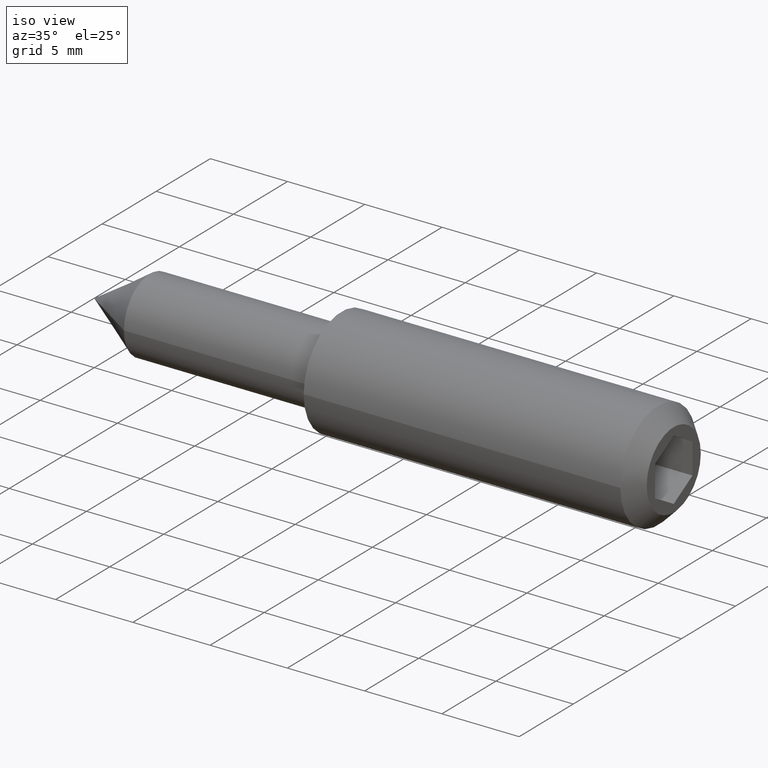
[diagram: clean part render]
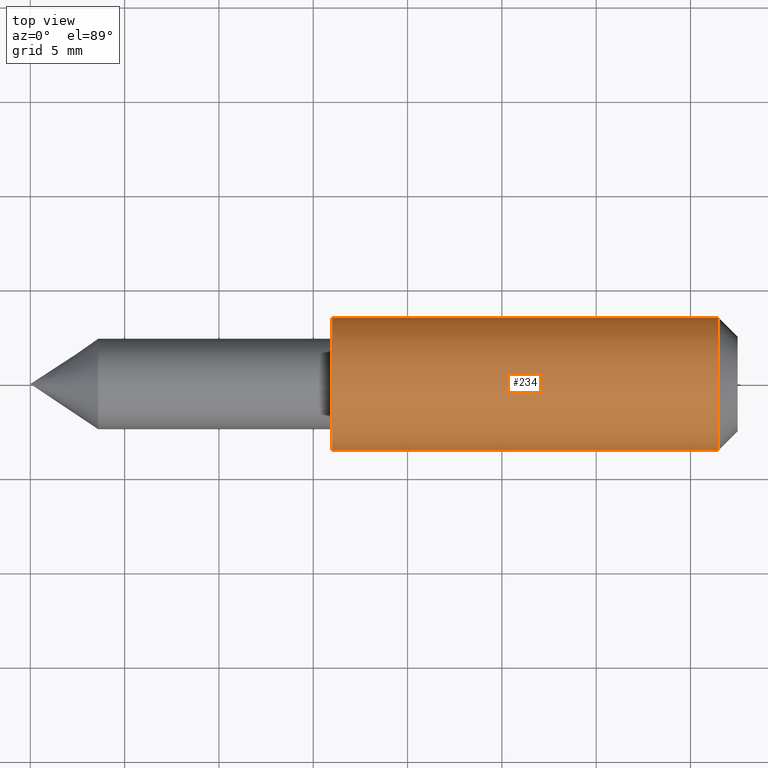
[diagram: tour spotlight — one face highlighted and labeled with its STEP entity id]
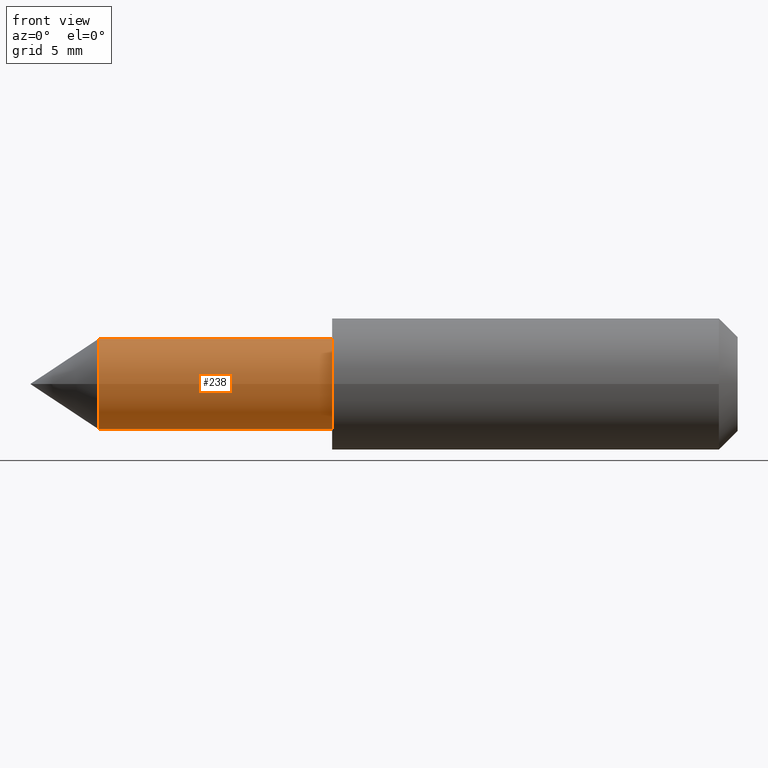
[diagram: tour spotlight — one face highlighted and labeled with its STEP entity id]
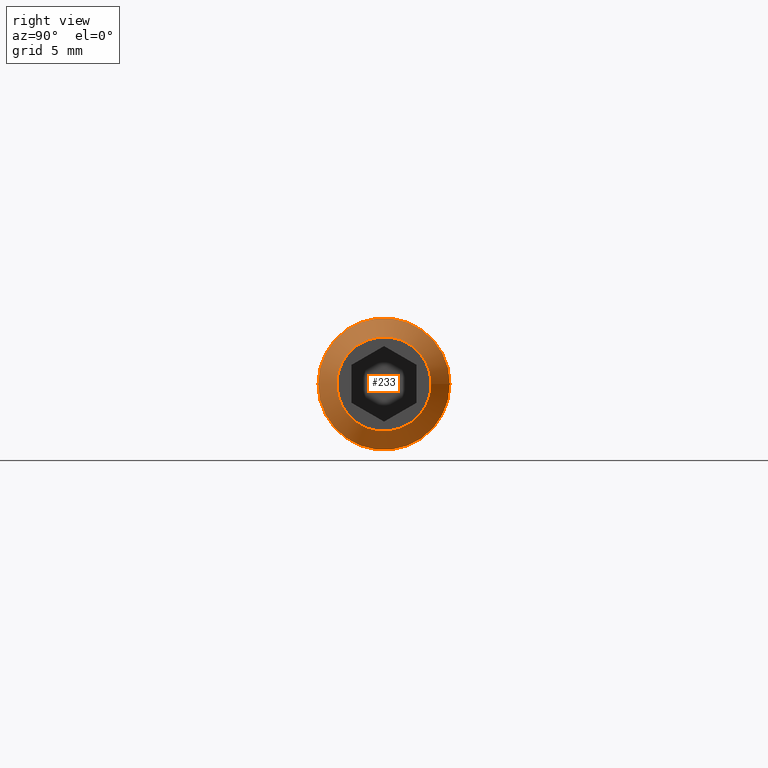
[diagram: tour spotlight — one face highlighted and labeled with its STEP entity id]
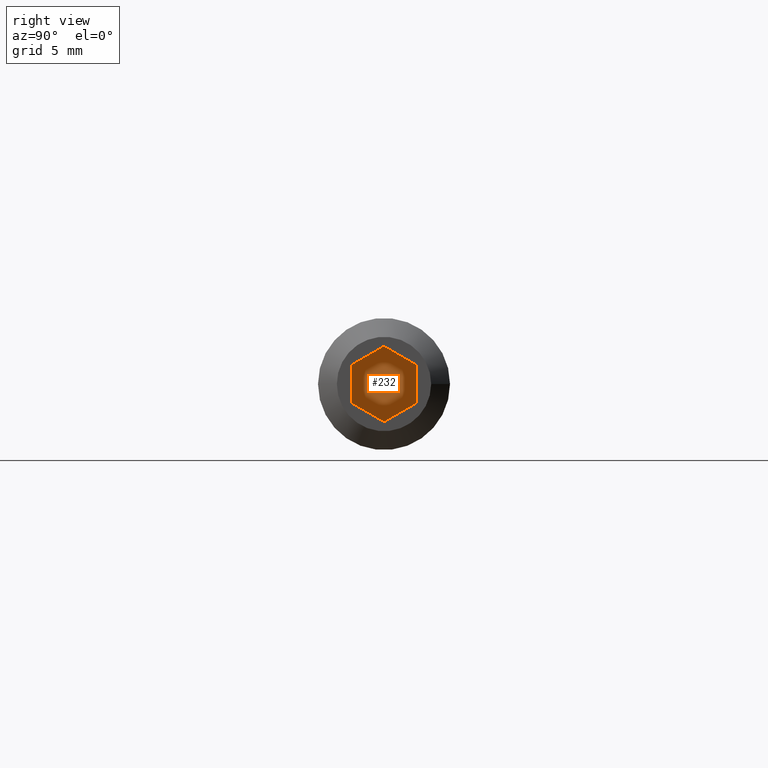
[diagram: tour spotlight — one face highlighted and labeled with its STEP entity id]
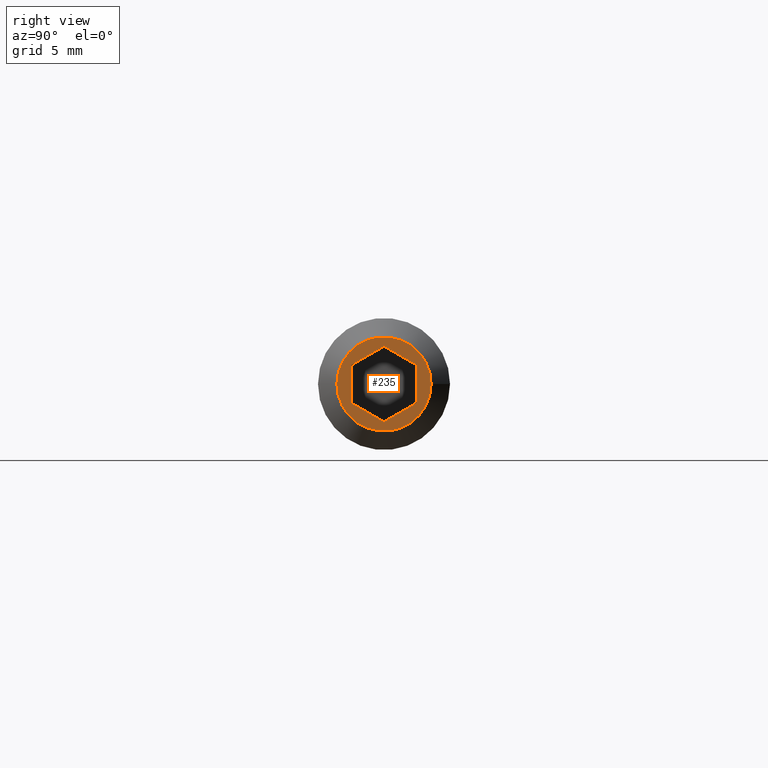
[diagram: tour spotlight — one face highlighted and labeled with its STEP entity id]
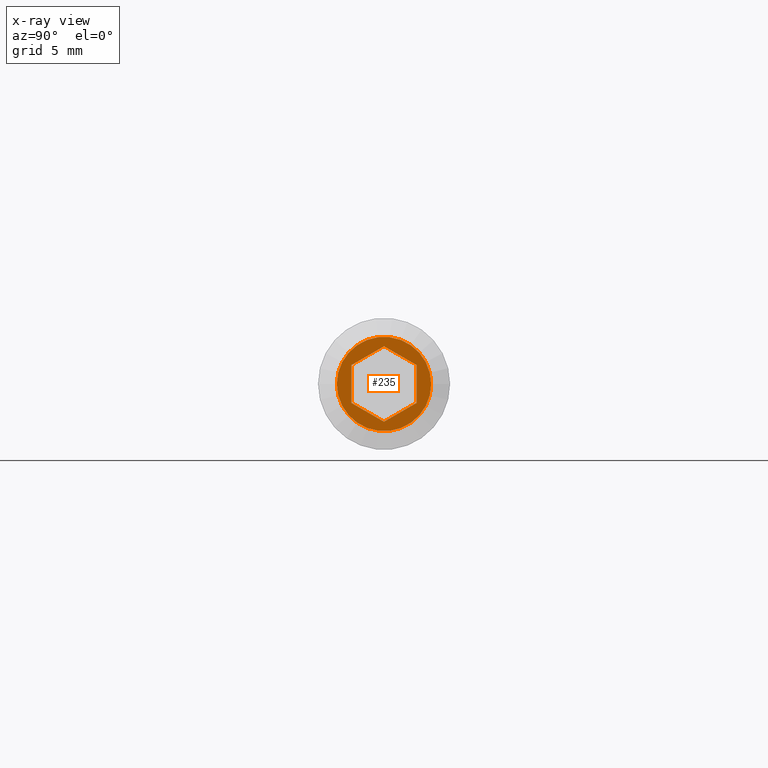
[diagram: x-ray of the same camera — body ghosted, this tour face saturated]
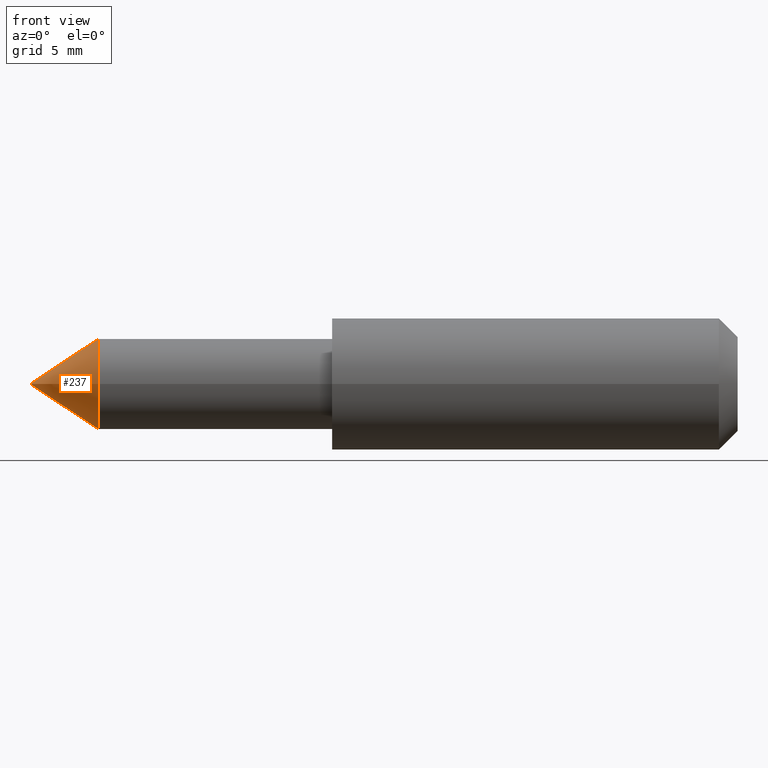
[diagram: tour spotlight — one face highlighted and labeled with its STEP entity id]
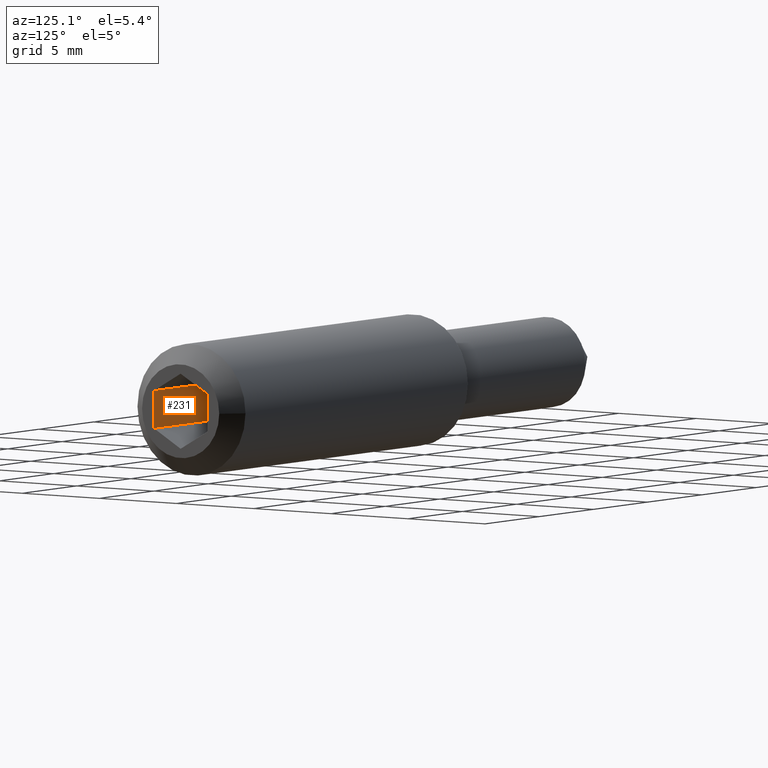
[diagram: tour spotlight — one face highlighted and labeled with its STEP entity id]
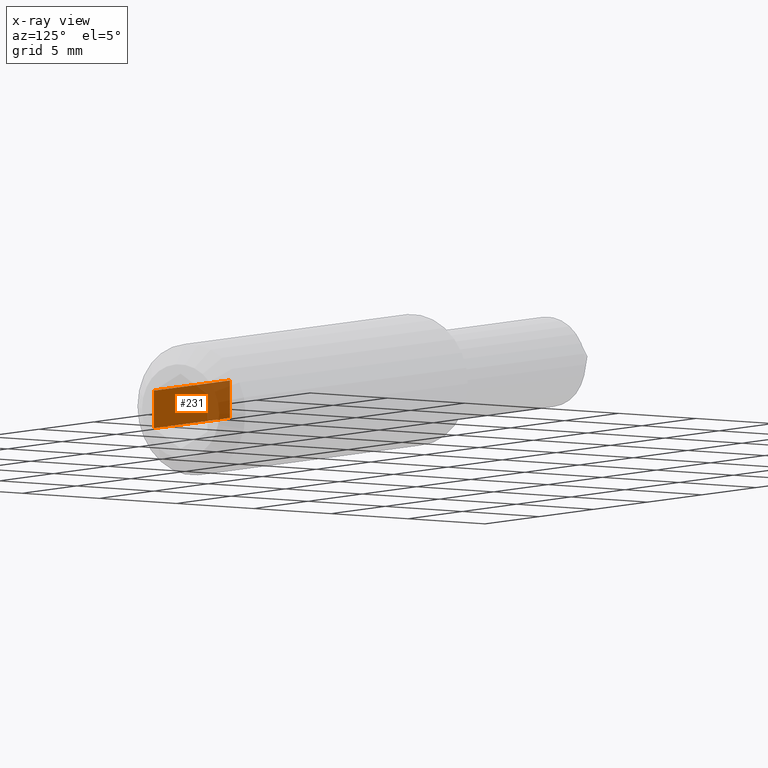
[diagram: x-ray of the same camera — body ghosted, this tour face saturated]
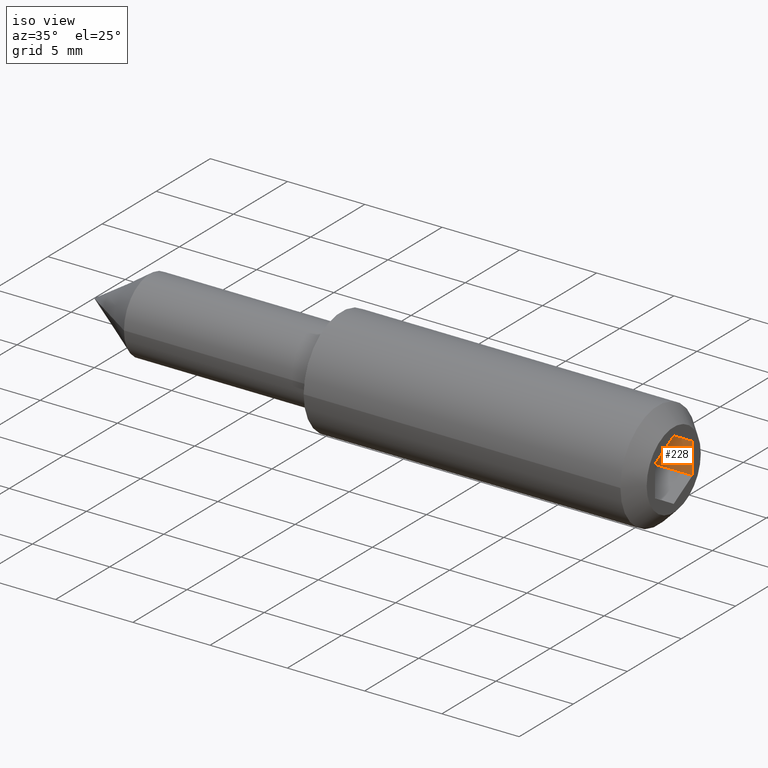
[diagram: tour spotlight — one face highlighted and labeled with its STEP entity id]
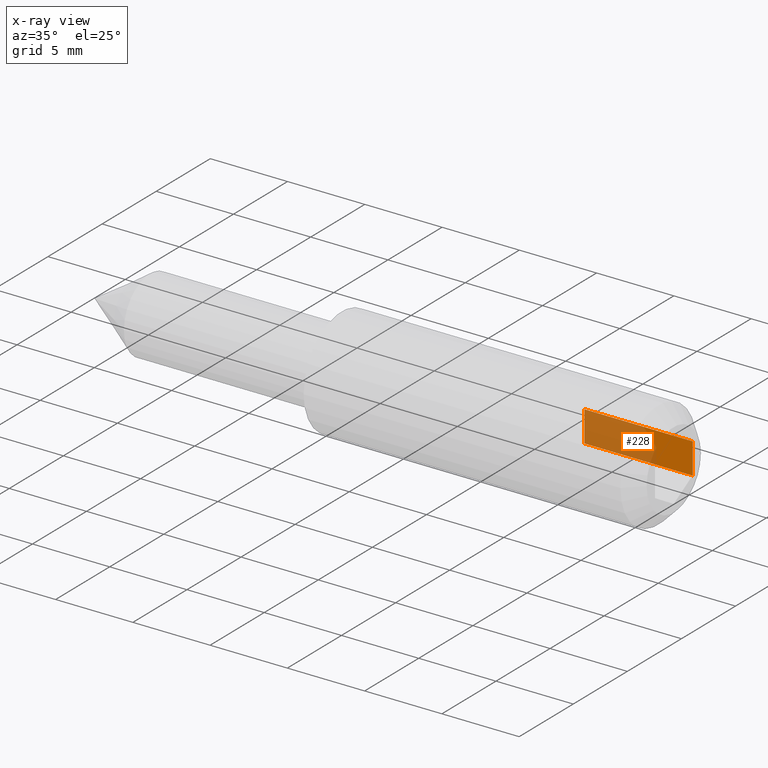
[diagram: x-ray of the same camera — body ghosted, this tour face saturated]
A machine part: a face-by-face anatomy tour. The part has 13 B-rep faces; the first image is the clean iso view, then the 8 largest visible faces are spotlighted one at a time (largest first), each with its STEP entity span.

Face 1 — top view, entity #234. In plain terms, the highlighted cylindrical surface (bore or boss wall) has radius 3.5 mm, axis along (1, 0, 0).
Definition (entity closure, byte-faithful):
#17=CYLINDRICAL_SURFACE('',#270,3.50000000000001);
#20=CIRCLE('',#268,3.50000000000001);
#21=CIRCLE('',#269,3.50000000000001);
#22=CIRCLE('',#271,3.5);
#23=CIRCLE('',#272,3.5);
#38=FACE_OUTER_BOUND('',#51,.T.);
#51=EDGE_LOOP('',(#190,#191,#192,#193,#194,#195));
#77=LINE('',#397,#99);
#99=VECTOR('',#326,3.50000000000001);
#115=VERTEX_POINT('',#390);
#116=VERTEX_POINT('',#392);
#117=VERTEX_POINT('',#396);
#118=VERTEX_POINT('',#398);
#144=EDGE_CURVE('',#115,#116,#20,.T.);
#145=EDGE_CURVE('',#116,#115,#21,.T.);
#146=EDGE_CURVE('',#116,#117,#77,.T.);
#147=EDGE_CURVE('',#117,#118,#22,.T.);
#148=EDGE_CURVE('',#118,#117,#23,.T.);
#190=ORIENTED_EDGE('',*,*,#144,.F.);
#191=ORIENTED_EDGE('',*,*,#145,.F.);
#192=ORIENTED_EDGE('',*,*,#146,.T.);
#193=ORIENTED_EDGE('',*,*,#147,.T.);
#194=ORIENTED_EDGE('',*,*,#148,.T.);
#195=ORIENTED_EDGE('',*,*,#146,.F.);
#234=ADVANCED_FACE('',(#38),#17,.T.);
#268=AXIS2_PLACEMENT_3D('',#393,#320,#321);
#269=AXIS2_PLACEMENT_3D('',#394,#322,#323);
#270=AXIS2_PLACEMENT_3D('',#395,#324,#325);
#271=AXIS2_PLACEMENT_3D('',#399,#327,#328);
#272=AXIS2_PLACEMENT_3D('',#400,#329,#330);
#320=DIRECTION('center_axis',(1.,0.,0.));
#321=DIRECTION('ref_axis',(0.,-1.,0.));
#322=DIRECTION('center_axis',(1.,0.,0.));
#323=DIRECTION('ref_axis',(0.,-1.,0.));
#324=DIRECTION('center_axis',(1.,0.,0.));
#325=DIRECTION('ref_axis',(0.,1.,0.));
#326=DIRECTION('',(-1.,0.,0.));
#327=DIRECTION('center_axis',(1.,0.,0.));
#328=DIRECTION('ref_axis',(0.,1.,0.));
#329=DIRECTION('center_axis',(1.,0.,0.));
#330=DIRECTION('ref_axis',(0.,1.,0.));
#390=CARTESIAN_POINT('',(36.5,3.50000000000001,4.28626379701574E-16));
#392=CARTESIAN_POINT('',(36.5,-3.50000000000001,-4.28626379701574E-16));
#393=CARTESIAN_POINT('Origin',(36.5,0.,0.));
#394=CARTESIAN_POINT('Origin',(36.5,0.,0.));
#395=CARTESIAN_POINT('Origin',(26.75,0.,0.));
#396=CARTESIAN_POINT('',(16.,-3.50000000000001,-4.28626379701574E-16));
#397=CARTESIAN_POINT('',(26.75,-3.50000000000001,-4.28626379701574E-16));
#398=CARTESIAN_POINT('',(16.,3.5,0.));
#399=CARTESIAN_POINT('Origin',(16.,0.,0.));
#400=CARTESIAN_POINT('Origin',(16.,0.,0.));

Face 2 — front view, entity #238. In plain terms, the highlighted cylindrical surface (bore or boss wall) has radius 2.4 mm, axis along (1, 0, 0).
Definition (entity closure, byte-faithful):
#18=CYLINDRICAL_SURFACE('',#280,2.4);
#24=CIRCLE('',#275,2.4);
#25=CIRCLE('',#276,2.4);
#26=CIRCLE('',#278,2.4);
#27=CIRCLE('',#279,2.4);
#42=FACE_OUTER_BOUND('',#57,.T.);
#57=EDGE_LOOP('',(#211,#212,#213,#214,#215,#216));
#79=LINE('',#415,#101);
#101=VECTOR('',#348,2.4);
#119=VERTEX_POINT('',#403);
#120=VERTEX_POINT('',#404);
#121=VERTEX_POINT('',#408);
#122=VERTEX_POINT('',#409);
#149=EDGE_CURVE('',#119,#120,#24,.T.);
#150=EDGE_CURVE('',#120,#119,#25,.T.);
#151=EDGE_CURVE('',#121,#122,#26,.T.);
#152=EDGE_CURVE('',#122,#121,#27,.T.);
#154=EDGE_CURVE('',#120,#122,#79,.T.);
#211=ORIENTED_EDGE('',*,*,#149,.F.);
#212=ORIENTED_EDGE('',*,*,#150,.F.);
#213=ORIENTED_EDGE('',*,*,#154,.T.);
#214=ORIENTED_EDGE('',*,*,#152,.T.);
#215=ORIENTED_EDGE('',*,*,#151,.T.);
#216=ORIENTED_EDGE('',*,*,#154,.F.);
#238=ADVANCED_FACE('',(#42),#18,.T.);
#275=AXIS2_PLACEMENT_3D('',#405,#335,#336);
#276=AXIS2_PLACEMENT_3D('',#406,#337,#338);
#278=AXIS2_PLACEMENT_3D('',#410,#341,#342);
#279=AXIS2_PLACEMENT_3D('',#411,#343,#344);
#280=AXIS2_PLACEMENT_3D('',#414,#346,#347);
#335=DIRECTION('center_axis',(1.,0.,0.));
#336=DIRECTION('ref_axis',(0.,1.,0.));
#337=DIRECTION('center_axis',(1.,0.,0.));
#338=DIRECTION('ref_axis',(0.,1.,0.));
#341=DIRECTION('center_axis',(1.,0.,0.));
#342=DIRECTION('ref_axis',(0.,1.,0.));
#343=DIRECTION('center_axis',(1.,0.,0.));
#344=DIRECTION('ref_axis',(0.,1.,0.));
#346=DIRECTION('center_axis',(1.,0.,0.));
#347=DIRECTION('ref_axis',(0.,1.,0.));
#348=DIRECTION('',(-1.,0.,0.));
#403=CARTESIAN_POINT('',(16.,2.4,0.));
#404=CARTESIAN_POINT('',(16.,-2.4,-2.93915231795365E-16));
#405=CARTESIAN_POINT('Origin',(16.,0.,0.));
#406=CARTESIAN_POINT('Origin',(16.,0.,0.));
#408=CARTESIAN_POINT('',(3.59952582914057,2.4,0.));
#409=CARTESIAN_POINT('',(3.59952582914057,-2.4,-2.93915231795365E-16));
#410=CARTESIAN_POINT('Origin',(3.59952582914057,0.,0.));
#411=CARTESIAN_POINT('Origin',(3.59952582914057,0.,0.));
#414=CARTESIAN_POINT('Origin',(9.79976291457029,0.,0.));
#415=CARTESIAN_POINT('',(9.79976291457029,-2.4,-2.93915231795365E-16));

Face 3 — right view, entity #233. In plain terms, the highlighted conical surface has half-angle 45 deg.
Definition (entity closure, byte-faithful):
#19=CIRCLE('',#267,2.50000000000001);
#20=CIRCLE('',#268,3.50000000000001);
#21=CIRCLE('',#269,3.50000000000001);
#28=CONICAL_SURFACE('',#266,3.00000000000001,0.785398163397447);
#37=FACE_OUTER_BOUND('',#50,.T.);
#50=EDGE_LOOP('',(#185,#186,#187,#188,#189));
#76=LINE('',#391,#98);
#98=VECTOR('',#319,3.00000000000001);
#114=VERTEX_POINT('',#388);
#115=VERTEX_POINT('',#390);
#116=VERTEX_POINT('',#392);
#142=EDGE_CURVE('',#114,#114,#19,.T.);
#143=EDGE_CURVE('',#114,#115,#76,.T.);
#144=EDGE_CURVE('',#115,#116,#20,.T.);
#145=EDGE_CURVE('',#116,#115,#21,.T.);
#185=ORIENTED_EDGE('',*,*,#142,.T.);
#186=ORIENTED_EDGE('',*,*,#143,.T.);
#187=ORIENTED_EDGE('',*,*,#144,.T.);
#188=ORIENTED_EDGE('',*,*,#145,.T.);
#189=ORIENTED_EDGE('',*,*,#143,.F.);
#233=ADVANCED_FACE('',(#37),#28,.T.);
#266=AXIS2_PLACEMENT_3D('',#387,#315,#316);
#267=AXIS2_PLACEMENT_3D('',#389,#317,#318);
#268=AXIS2_PLACEMENT_3D('',#393,#320,#321);
#269=AXIS2_PLACEMENT_3D('',#394,#322,#323);
#315=DIRECTION('center_axis',(-1.,0.,0.));
#316=DIRECTION('ref_axis',(0.,-1.,0.));
#317=DIRECTION('center_axis',(-1.,0.,0.));
#318=DIRECTION('ref_axis',(0.,-1.,0.));
#319=DIRECTION('',(-0.707106781186549,0.707106781186546,8.65956056235492E-17));
#320=DIRECTION('center_axis',(1.,0.,0.));
#321=DIRECTION('ref_axis',(0.,-1.,0.));
#322=DIRECTION('center_axis',(1.,0.,0.));
#323=DIRECTION('ref_axis',(0.,-1.,0.));
#387=CARTESIAN_POINT('Origin',(37.,0.,0.));
#388=CARTESIAN_POINT('',(37.5,2.50000000000001,-3.06161699786839E-16));
#389=CARTESIAN_POINT('Origin',(37.5,0.,0.));
#390=CARTESIAN_POINT('',(36.5,3.50000000000001,4.28626379701574E-16));
#391=CARTESIAN_POINT('',(37.,3.00000000000001,3.67394039744207E-16));
#392=CARTESIAN_POINT('',(36.5,-3.50000000000001,-4.28626379701574E-16));
#393=CARTESIAN_POINT('Origin',(36.5,0.,0.));
#394=CARTESIAN_POINT('Origin',(36.5,0.,0.));

Face 4 — right view, entity #232. In plain terms, the highlighted planar face has unit normal (1, 0, 0).
Definition (entity closure, byte-faithful):
#36=FACE_OUTER_BOUND('',#49,.T.);
#49=EDGE_LOOP('',(#179,#180,#181,#182,#183,#184));
#60=LINE('',#357,#82);
#64=LINE('',#364,#86);
#67=LINE('',#370,#89);
#70=LINE('',#376,#92);
#73=LINE('',#382,#95);
#75=LINE('',#385,#97);
#82=VECTOR('',#287,10.);
#86=VECTOR('',#293,10.);
#89=VECTOR('',#298,10.);
#92=VECTOR('',#303,10.);
#95=VECTOR('',#308,10.);
#97=VECTOR('',#312,10.);
#104=VERTEX_POINT('',#354);
#105=VERTEX_POINT('',#356);
#107=VERTEX_POINT('',#362);
#109=VERTEX_POINT('',#368);
#111=VERTEX_POINT('',#374);
#113=VERTEX_POINT('',#380);
#126=EDGE_CURVE('',#104,#105,#60,.T.);
#130=EDGE_CURVE('',#107,#104,#64,.T.);
#133=EDGE_CURVE('',#109,#107,#67,.T.);
#136=EDGE_CURVE('',#111,#109,#70,.T.);
#139=EDGE_CURVE('',#113,#111,#73,.T.);
#141=EDGE_CURVE('',#105,#113,#75,.T.);
#179=ORIENTED_EDGE('',*,*,#141,.F.);
#180=ORIENTED_EDGE('',*,*,#126,.F.);
#181=ORIENTED_EDGE('',*,*,#130,.F.);
#182=ORIENTED_EDGE('',*,*,#133,.F.);
#183=ORIENTED_EDGE('',*,*,#136,.F.);
#184=ORIENTED_EDGE('',*,*,#139,.F.);
#223=PLANE('',#265);
#232=ADVANCED_FACE('',(#36),#223,.T.);
#265=AXIS2_PLACEMENT_3D('',#386,#313,#314);
#287=DIRECTION('',(0.,-0.866025403784439,0.5));
#293=DIRECTION('',(0.,-0.866025403784438,-0.5));
#298=DIRECTION('',(0.,1.38777878078145E-16,-1.));
#303=DIRECTION('',(0.,0.866025403784439,-0.5));
#308=DIRECTION('',(0.,0.866025403784439,0.5));
#312=DIRECTION('',(0.,1.38777878078145E-16,1.));
#313=DIRECTION('center_axis',(1.,0.,0.));
#314=DIRECTION('ref_axis',(0.,0.,-1.));
#354=CARTESIAN_POINT('',(30.5,1.94289029309402E-15,-2.));
#356=CARTESIAN_POINT('',(30.5,-1.73205080756888,-1.));
#357=CARTESIAN_POINT('',(30.5,2.06871506404621E-15,-2.));
#362=CARTESIAN_POINT('',(30.5,1.73205080756888,-1.));
#364=CARTESIAN_POINT('',(30.5,1.73205080756888,-1.));
#368=CARTESIAN_POINT('',(30.5,1.73205080756888,1.));
#370=CARTESIAN_POINT('',(30.5,1.73205080756888,1.));
#374=CARTESIAN_POINT('',(30.5,0.,2.));
#376=CARTESIAN_POINT('',(30.5,0.,2.));
#380=CARTESIAN_POINT('',(30.5,-1.73205080756888,1.));
#382=CARTESIAN_POINT('',(30.5,-1.73205080756888,1.));
#385=CARTESIAN_POINT('',(30.5,-1.73205080756888,-1.));
#386=CARTESIAN_POINT('Origin',(30.5,8.67361737988404E-17,1.30104260698261E-16));

Face 5 — right view, entity #235. An x-ray twin of the same camera follows (body ghosted, this face saturated) — the face is partly hidden behind the body. In plain terms, the highlighted planar face has unit normal (1, 0, 0).
Definition (entity closure, byte-faithful):
#15=FACE_BOUND('',#53,.T.);
#19=CIRCLE('',#267,2.50000000000001);
#39=FACE_OUTER_BOUND('',#52,.T.);
#52=EDGE_LOOP('',(#196));
#53=EDGE_LOOP('',(#197,#198,#199,#200,#201,#202));
#58=LINE('',#353,#80);
#62=LINE('',#361,#84);
#65=LINE('',#367,#87);
#68=LINE('',#373,#90);
#71=LINE('',#379,#93);
#74=LINE('',#384,#96);
#80=VECTOR('',#285,10.);
#84=VECTOR('',#291,10.);
#87=VECTOR('',#296,10.);
#90=VECTOR('',#301,10.);
#93=VECTOR('',#306,10.);
#96=VECTOR('',#311,10.);
#102=VERTEX_POINT('',#351);
#103=VERTEX_POINT('',#352);
#106=VERTEX_POINT('',#360);
#108=VERTEX_POINT('',#366);
#110=VERTEX_POINT('',#372);
#112=VERTEX_POINT('',#378);
#114=VERTEX_POINT('',#388);
#124=EDGE_CURVE('',#102,#103,#58,.T.);
#128=EDGE_CURVE('',#106,#102,#62,.T.);
#131=EDGE_CURVE('',#108,#106,#65,.T.);
#134=EDGE_CURVE('',#110,#108,#68,.T.);
#137=EDGE_CURVE('',#112,#110,#71,.T.);
#140=EDGE_CURVE('',#103,#112,#74,.T.);
#142=EDGE_CURVE('',#114,#114,#19,.T.);
#196=ORIENTED_EDGE('',*,*,#142,.F.);
#197=ORIENTED_EDGE('',*,*,#124,.T.);
#198=ORIENTED_EDGE('',*,*,#140,.T.);
#199=ORIENTED_EDGE('',*,*,#137,.T.);
#200=ORIENTED_EDGE('',*,*,#134,.T.);
#201=ORIENTED_EDGE('',*,*,#131,.T.);
#202=ORIENTED_EDGE('',*,*,#128,.T.);
#224=PLANE('',#273);
#235=ADVANCED_FACE('',(#39,#15),#224,.T.);
#267=AXIS2_PLACEMENT_3D('',#389,#317,#318);
#273=AXIS2_PLACEMENT_3D('',#401,#331,#332);
#285=DIRECTION('',(0.,-0.866025403784439,0.5));
#291=DIRECTION('',(0.,-0.866025403784438,-0.5));
#296=DIRECTION('',(0.,1.38777878078145E-16,-1.));
#301=DIRECTION('',(0.,0.866025403784439,-0.5));
#306=DIRECTION('',(0.,0.866025403784439,0.5));
#311=DIRECTION('',(0.,1.38777878078145E-16,1.));
#317=DIRECTION('center_axis',(-1.,0.,0.));
#318=DIRECTION('ref_axis',(0.,-1.,0.));
#331=DIRECTION('center_axis',(1.,0.,0.));
#332=DIRECTION('ref_axis',(0.,0.,-1.));
#351=CARTESIAN_POINT('',(37.5,2.06871506404621E-15,-2.));
#352=CARTESIAN_POINT('',(37.5,-1.73205080756888,-1.));
#353=CARTESIAN_POINT('',(37.5,0.223237298107784,-2.12888611415569));
#360=CARTESIAN_POINT('',(37.5,1.73205080756888,-1.));
#361=CARTESIAN_POINT('',(37.5,1.95528810567666,-0.871113885844307));
#366=CARTESIAN_POINT('',(37.5,1.73205080756888,1.));
#367=CARTESIAN_POINT('',(37.5,1.73205080756888,0.5));
#372=CARTESIAN_POINT('',(37.5,0.,2.));
#373=CARTESIAN_POINT('',(37.5,1.08926270189222,1.37111388584431));
#378=CARTESIAN_POINT('',(37.5,-1.73205080756888,1.));
#379=CARTESIAN_POINT('',(37.5,-0.642788105676656,1.62888611415569));
#384=CARTESIAN_POINT('',(37.5,-1.73205080756888,-0.5));
#388=CARTESIAN_POINT('',(37.5,2.50000000000001,-3.06161699786839E-16));
#389=CARTESIAN_POINT('Origin',(37.5,0.,0.));
#401=CARTESIAN_POINT('Origin',(37.5,1.75,0.));

Face 6 — front view, entity #237. In plain terms, the highlighted conical surface has half-angle 33.694 deg.
Definition (entity closure, byte-faithful):
#26=CIRCLE('',#278,2.4);
#27=CIRCLE('',#279,2.4);
#29=CONICAL_SURFACE('',#277,1.2,0.588063400227165);
#41=FACE_OUTER_BOUND('',#56,.T.);
#56=EDGE_LOOP('',(#207,#208,#209,#210));
#78=LINE('',#413,#100);
#100=VECTOR('',#345,1.2);
#121=VERTEX_POINT('',#408);
#122=VERTEX_POINT('',#409);
#123=VERTEX_POINT('',#412);
#151=EDGE_CURVE('',#121,#122,#26,.T.);
#152=EDGE_CURVE('',#122,#121,#27,.T.);
#153=EDGE_CURVE('',#122,#123,#78,.T.);
#207=ORIENTED_EDGE('',*,*,#151,.F.);
#208=ORIENTED_EDGE('',*,*,#152,.F.);
#209=ORIENTED_EDGE('',*,*,#153,.T.);
#210=ORIENTED_EDGE('',*,*,#153,.F.);
#237=ADVANCED_FACE('',(#41),#29,.T.);
#277=AXIS2_PLACEMENT_3D('',#407,#339,#340);
#278=AXIS2_PLACEMENT_3D('',#410,#341,#342);
#279=AXIS2_PLACEMENT_3D('',#411,#343,#344);
#339=DIRECTION('center_axis',(1.,0.,0.));
#340=DIRECTION('ref_axis',(0.,1.,0.));
#341=DIRECTION('center_axis',(1.,0.,0.));
#342=DIRECTION('ref_axis',(0.,1.,0.));
#343=DIRECTION('center_axis',(1.,0.,0.));
#344=DIRECTION('ref_axis',(0.,1.,0.));
#345=DIRECTION('',(-0.832016568870035,0.554750781095201,6.79373768392731E-17));
#407=CARTESIAN_POINT('Origin',(1.79976291457029,0.,0.));
#408=CARTESIAN_POINT('',(3.59952582914057,2.4,0.));
#409=CARTESIAN_POINT('',(3.59952582914057,-2.4,-2.93915231795365E-16));
#410=CARTESIAN_POINT('Origin',(3.59952582914057,0.,0.));
#411=CARTESIAN_POINT('Origin',(3.59952582914057,0.,0.));
#412=CARTESIAN_POINT('',(0.,0.,0.));
#413=CARTESIAN_POINT('',(1.79976291457029,-1.2,-1.46957615897682E-16));

Face 7 — auxiliary view, entity #231. An x-ray twin of the same camera follows (body ghosted, this face saturated) — the face is partly hidden behind the body. In plain terms, the highlighted planar face has unit normal (0, -1, 0).
Definition (entity closure, byte-faithful):
#35=FACE_OUTER_BOUND('',#48,.T.);
#48=EDGE_LOOP('',(#175,#176,#177,#178));
#61=LINE('',#358,#83);
#72=LINE('',#381,#94);
#74=LINE('',#384,#96);
#75=LINE('',#385,#97);
#83=VECTOR('',#288,10.);
#94=VECTOR('',#307,10.);
#96=VECTOR('',#311,10.);
#97=VECTOR('',#312,10.);
#103=VERTEX_POINT('',#352);
#105=VERTEX_POINT('',#356);
#112=VERTEX_POINT('',#378);
#113=VERTEX_POINT('',#380);
#127=EDGE_CURVE('',#103,#105,#61,.T.);
#138=EDGE_CURVE('',#112,#113,#72,.T.);
#140=EDGE_CURVE('',#103,#112,#74,.T.);
#141=EDGE_CURVE('',#105,#113,#75,.T.);
#175=ORIENTED_EDGE('',*,*,#140,.F.);
#176=ORIENTED_EDGE('',*,*,#127,.T.);
#177=ORIENTED_EDGE('',*,*,#141,.T.);
#178=ORIENTED_EDGE('',*,*,#138,.F.);
#222=PLANE('',#264);
#231=ADVANCED_FACE('',(#35),#222,.F.);
#264=AXIS2_PLACEMENT_3D('',#383,#309,#310);
#288=DIRECTION('',(-1.,0.,0.));
#307=DIRECTION('',(-1.,0.,0.));
#309=DIRECTION('center_axis',(0.,-1.,1.38777878078145E-16));
#310=DIRECTION('ref_axis',(0.,1.38777878078145E-16,1.));
#311=DIRECTION('',(0.,1.38777878078145E-16,1.));
#312=DIRECTION('',(0.,1.38777878078145E-16,1.));
#352=CARTESIAN_POINT('',(37.5,-1.73205080756888,-1.));
#356=CARTESIAN_POINT('',(30.5,-1.73205080756888,-1.));
#358=CARTESIAN_POINT('',(37.5,-1.73205080756888,-1.));
#378=CARTESIAN_POINT('',(37.5,-1.73205080756888,1.));
#380=CARTESIAN_POINT('',(30.5,-1.73205080756888,1.));
#381=CARTESIAN_POINT('',(37.5,-1.73205080756888,1.));
#383=CARTESIAN_POINT('Origin',(37.5,-1.73205080756888,-1.));
#384=CARTESIAN_POINT('',(37.5,-1.73205080756888,-0.5));
#385=CARTESIAN_POINT('',(30.5,-1.73205080756888,-1.));

Face 8 — iso view, entity #228. An x-ray twin of the same camera follows (body ghosted, this face saturated) — the face is partly hidden behind the body. In plain terms, the highlighted planar face has unit normal (0, 1, 0).
Definition (entity closure, byte-faithful):
#32=FACE_OUTER_BOUND('',#45,.T.);
#45=EDGE_LOOP('',(#163,#164,#165,#166));
#63=LINE('',#363,#85);
#65=LINE('',#367,#87);
#66=LINE('',#369,#88);
#67=LINE('',#370,#89);
#85=VECTOR('',#292,10.);
#87=VECTOR('',#296,10.);
#88=VECTOR('',#297,10.);
#89=VECTOR('',#298,10.);
#106=VERTEX_POINT('',#360);
#107=VERTEX_POINT('',#362);
#108=VERTEX_POINT('',#366);
#109=VERTEX_POINT('',#368);
#129=EDGE_CURVE('',#106,#107,#63,.T.);
#131=EDGE_CURVE('',#108,#106,#65,.T.);
#132=EDGE_CURVE('',#108,#109,#66,.T.);
#133=EDGE_CURVE('',#109,#107,#67,.T.);
#163=ORIENTED_EDGE('',*,*,#131,.F.);
#164=ORIENTED_EDGE('',*,*,#132,.T.);
#165=ORIENTED_EDGE('',*,*,#133,.T.);
#166=ORIENTED_EDGE('',*,*,#129,.F.);
#219=PLANE('',#261);
#228=ADVANCED_FACE('',(#32),#219,.F.);
#261=AXIS2_PLACEMENT_3D('',#365,#294,#295);
#292=DIRECTION('',(-1.,0.,0.));
#294=DIRECTION('center_axis',(0.,1.,1.38777878078145E-16));
#295=DIRECTION('ref_axis',(0.,1.38777878078145E-16,-1.));
#296=DIRECTION('',(0.,1.38777878078145E-16,-1.));
#297=DIRECTION('',(-1.,0.,0.));
#298=DIRECTION('',(0.,1.38777878078145E-16,-1.));
#360=CARTESIAN_POINT('',(37.5,1.73205080756888,-1.));
#362=CARTESIAN_POINT('',(30.5,1.73205080756888,-1.));
#363=CARTESIAN_POINT('',(37.5,1.73205080756888,-1.));
#365=CARTESIAN_POINT('Origin',(37.5,1.73205080756888,1.));
#366=CARTESIAN_POINT('',(37.5,1.73205080756888,1.));
#367=CARTESIAN_POINT('',(37.5,1.73205080756888,0.5));
#368=CARTESIAN_POINT('',(30.5,1.73205080756888,1.));
#369=CARTESIAN_POINT('',(37.5,1.73205080756888,1.));
#370=CARTESIAN_POINT('',(30.5,1.73205080756888,1.));